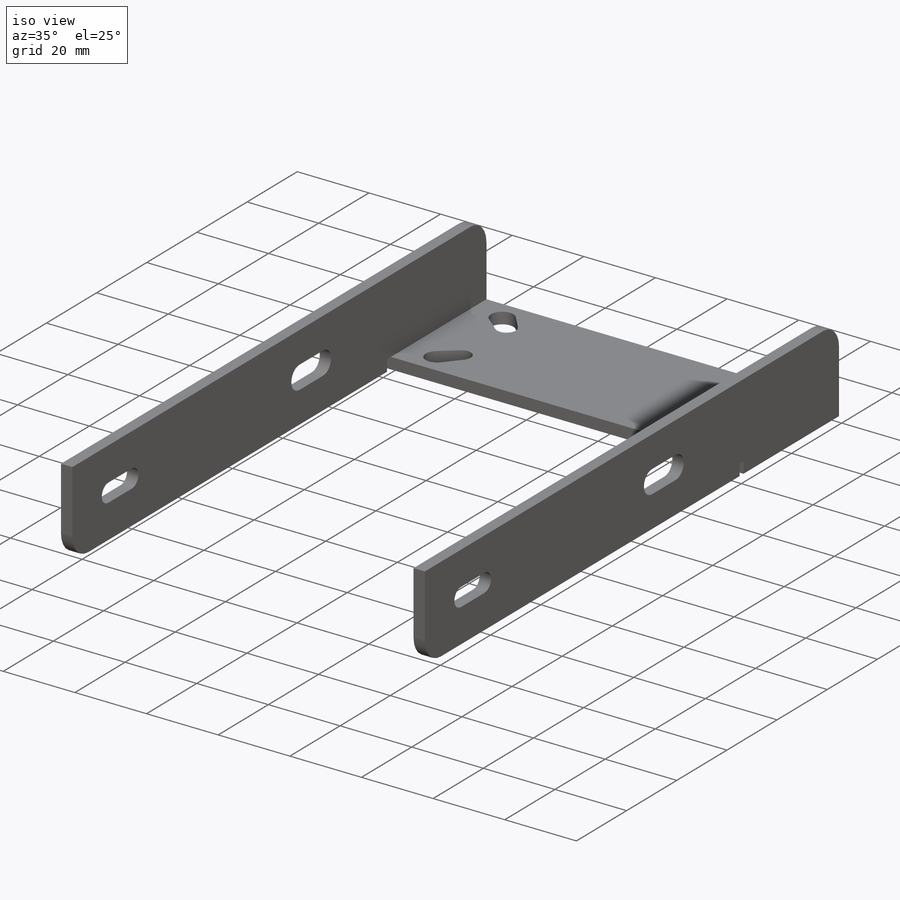
[diagram: iso view]
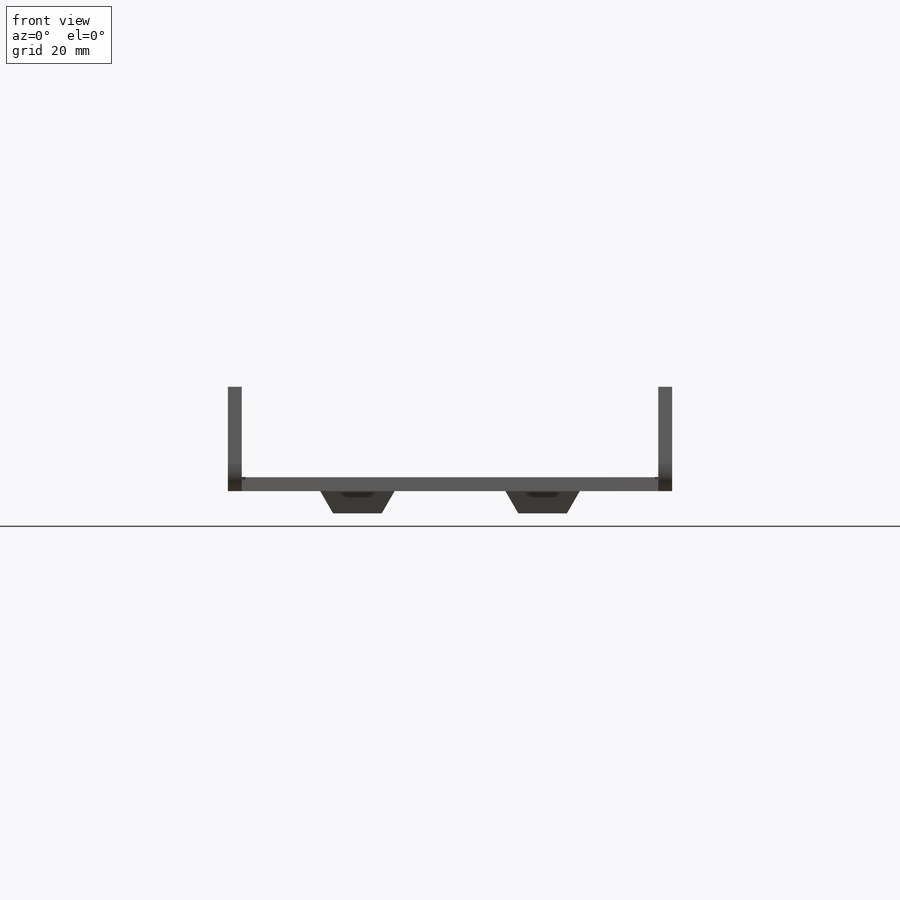
[diagram: front view]
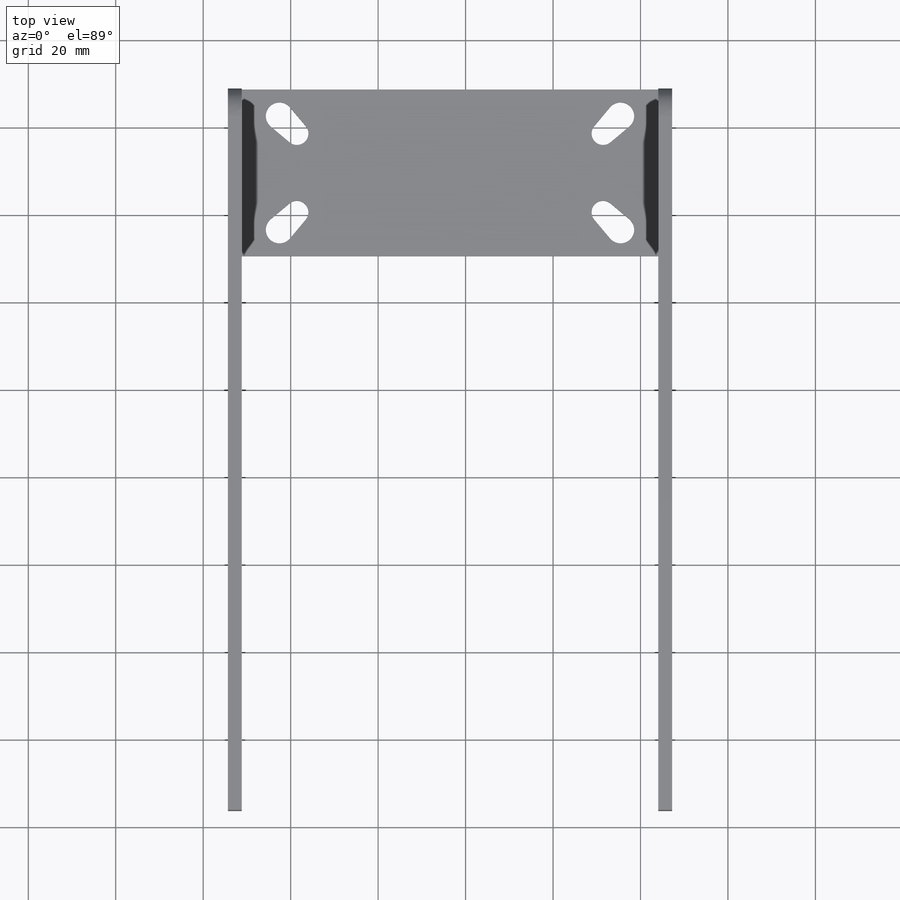
[diagram: top view]
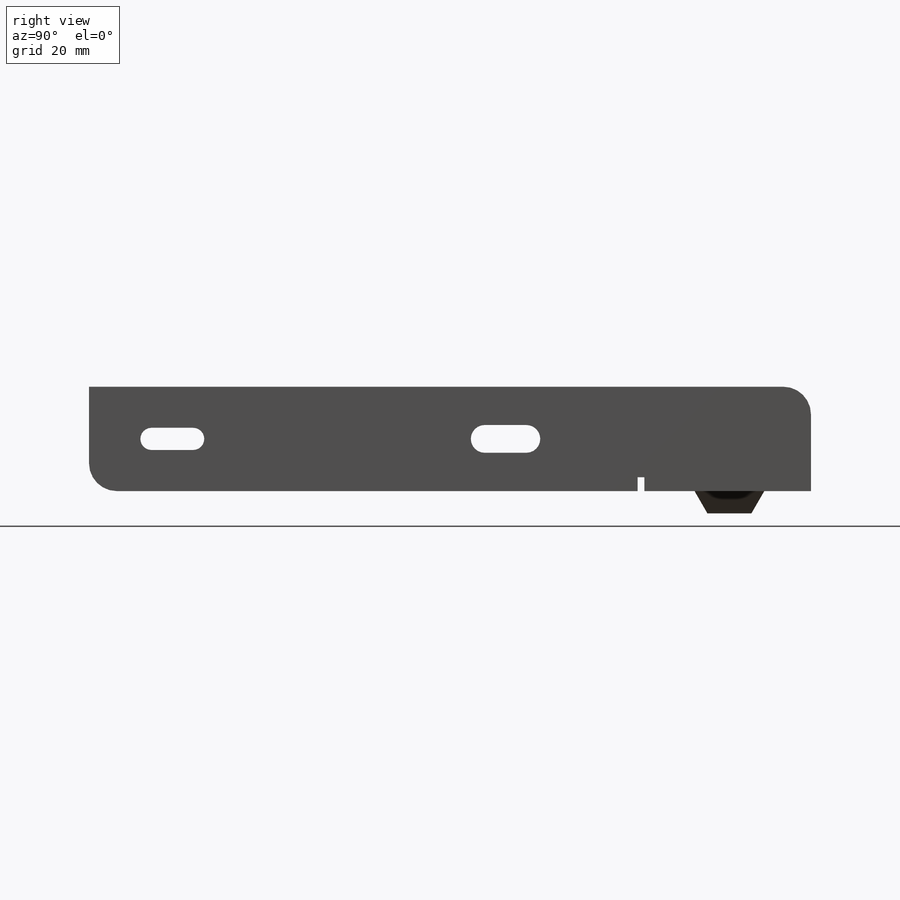
[diagram: right view]
SOLIDWORKS PART (.sldprt)
format: sldprt  version: not decoded by parser v0  size: 414,720 bytes
history: native  units: mm
features: sketch x9, extrude x6, cut_extrude x3, material x1, fillet x1 (+12 scaffold rows collapsed)
feature tree (32):
  scaffold x12  (default folders/planes/origin — collapsed)
  material  "Material <not specified>"
  sketch  "Sketch1"
  extrude  "Boss-Extrude1"  Depth=5.08mm
  sketch  "Sketch2"
  extrude  "Boss-Extrude2"  [1 undecoded]
  sketch  "Sketch3"  dims[D1=0.0deg D2=0.0deg]
  extrude  "Boss-Extrude3"  [1 undecoded]
  sketch  "Sketch4"
  extrude  "Boss-Extrude4"  [1 undecoded]
  fillet  "Fillet1"  [1 undecoded]
  sketch  "Sketch7"  dims[D1=0.0deg D2=0.0deg]
  cut_extrude  "Cut-Extrude2"  [1 undecoded]
  sketch  "Sketch8"  dims[D1=0.0deg D2=0.0deg]
  extrude  "Boss-Extrude5"  [1 undecoded]
  sketch  "Sketch9"  dims[D1=~0.145531deg D2=~0.181914deg D3=~0.545742deg D4=~0.545742deg D5=~4.365938deg D6=~1.091485deg]
  cut_extrude  "Cut-Extrude3"  [1 undecoded]
  sketch  "Sketch10"
  extrude  "Boss-Extrude6"  [1 undecoded]
  sketch  "Sketch11"  dims[c1.D3=~0.358099deg c1.D5=~0.300803deg c1.D6=~0.150401deg c1.D1=~4.469071deg c1.D2=~1.48969deg c2.D3=~0.431746deg c2.D6=~4.010705deg c2.D7=~1.031324deg c2.D4=~0.229183deg]
  cut_extrude  "Cut-Extrude4"  [1 undecoded]
decode coverage: 6 of 19 modeling features carry decoded parameters
note: ~ marks probable driven/reference dimensions
note: 9 parameter values undecoded
summary: no parameter record found for 9 features
note: suppression state not decoded; provenance and decode notes live in map.json
